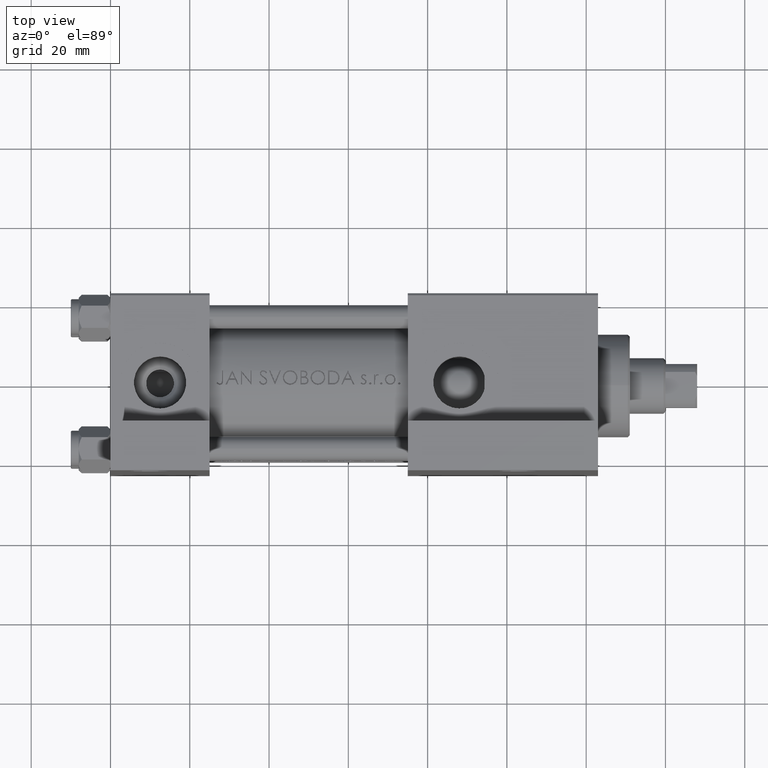
[diagram: clean part render]
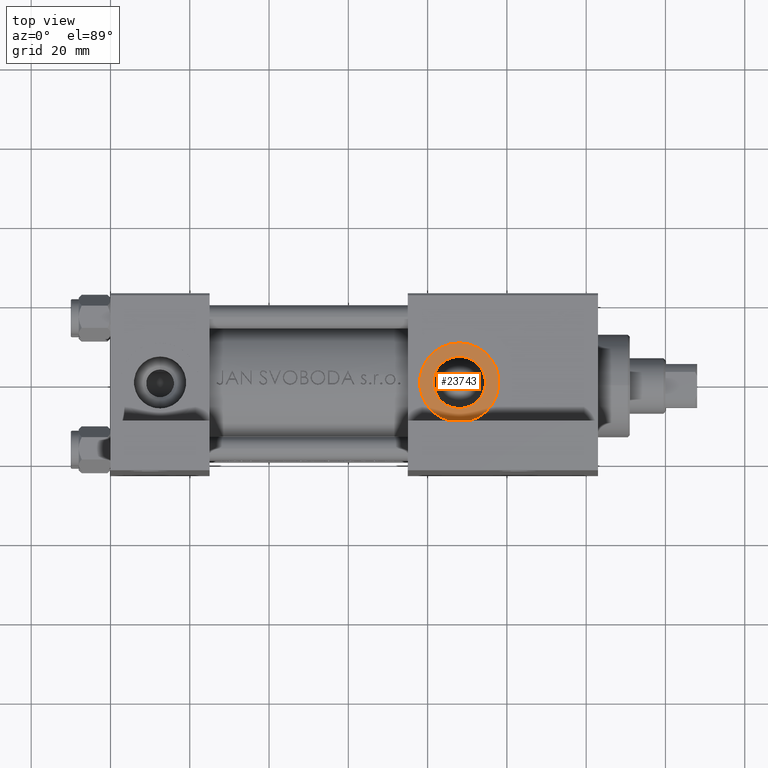
[diagram: same view with one face highlighted and labeled with its STEP entity id]
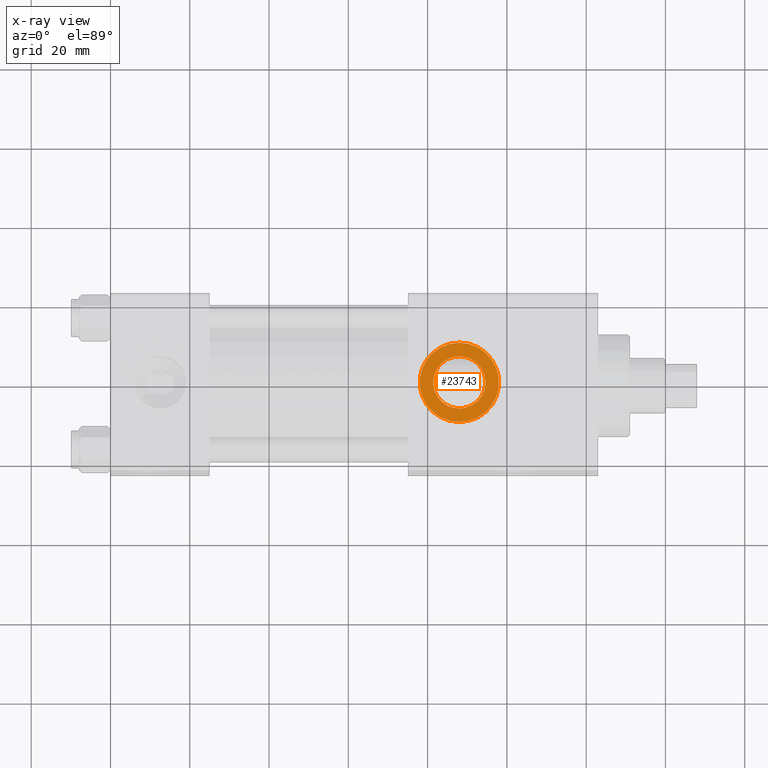
[diagram: x-ray of the same camera — body ghosted, the highlighted face saturated]
A machine part, top view. The second image highlights one B-rep face of the part: STEP entity #23743.
The next image is the same camera in x-ray: the body ghosted, the highlighted face saturated — about 0% of this face is hidden behind the body in this view.
In plain terms, the highlighted planar face has unit normal (0, -0, 1).
Its self-contained STEP definition (entity closure, byte-faithful):
#511 = CARTESIAN_POINT ( 'NONE',  ( 88.00000000000001421, -22.29999999999999716, 9.999999999999994671 ) ) ;
#962 = AXIS2_PLACEMENT_3D ( 'NONE', #40811, #7837, #10735 ) ;
#973 = CARTESIAN_POINT ( 'NONE',  ( 88.00000000000001421, -22.29999999999999716, 1.734723475976807403E-17 ) ) ;
#4597 = FACE_BOUND ( 'NONE', #18524, .T. ) ;
#7837 = DIRECTION ( 'NONE',  ( 0.000000000000000000, -1.000000000000000000, -8.673617379884036705E-17 ) ) ;
#7973 = DIRECTION ( 'NONE',  ( 0.000000000000000000, 0.000000000000000000, -1.000000000000000000 ) ) ;
#10735 = DIRECTION ( 'NONE',  ( 0.000000000000000000, 0.000000000000000000, -1.000000000000000000 ) ) ;
#10751 = ORIENTED_EDGE ( 'NONE', *, *, #26469, .F. ) ;
#11105 = DIRECTION ( 'NONE',  ( 0.000000000000000000, -1.000000000000000000, -8.673617379884036705E-17 ) ) ;
#11600 = VERTEX_POINT ( 'NONE', #13150 ) ;
#11719 = CIRCLE ( 'NONE', #962, 9.999999999999994671 ) ;
#12260 = CIRCLE ( 'NONE', #37608, 6.580000000000002736 ) ;
#13150 = CARTESIAN_POINT ( 'NONE',  ( 88.00000000000001421, -22.29999999999999716, -9.999999999999994671 ) ) ;
#13796 = DIRECTION ( 'NONE',  ( 0.000000000000000000, 0.000000000000000000, -1.000000000000000000 ) ) ;
#14183 = CIRCLE ( 'NONE', #46474, 6.580000000000002736 ) ;
#15694 = CARTESIAN_POINT ( 'NONE',  ( 88.00000000000001421, -22.29999999999999716, 1.734723475976808635E-17 ) ) ;
#16513 = ORIENTED_EDGE ( 'NONE', *, *, #43471, .F. ) ;
#17629 = AXIS2_PLACEMENT_3D ( 'NONE', #973, #18564, #25783 ) ;
#18367 = CARTESIAN_POINT ( 'NONE',  ( 88.00000000000001421, -22.29999999999999716, 1.734723475976807403E-17 ) ) ;
#18524 = EDGE_LOOP ( 'NONE', ( #16513, #10751 ) ) ;
#18564 = DIRECTION ( 'NONE',  ( 0.000000000000000000, -1.000000000000000000, -8.673617379884036705E-17 ) ) ;
#19002 = ORIENTED_EDGE ( 'NONE', *, *, #37922, .T. ) ;
#19705 = ORIENTED_EDGE ( 'NONE', *, *, #38778, .T. ) ;
#22659 = PLANE ( 'NONE',  #17629 ) ;
#23743 = ADVANCED_FACE ( 'NONE', ( #4597, #33941 ), #22659, .T. ) ;
#24422 = VERTEX_POINT ( 'NONE', #27532 ) ;
#24460 = VERTEX_POINT ( 'NONE', #511 ) ;
#25390 = DIRECTION ( 'NONE',  ( 0.000000000000000000, 0.000000000000000000, -1.000000000000000000 ) ) ;
#25783 = DIRECTION ( 'NONE',  ( 0.000000000000000000, 8.673617379884036705E-17, -1.000000000000000000 ) ) ;
#26469 = EDGE_CURVE ( 'NONE', #24422, #44867, #12260, .T. ) ;
#27532 = CARTESIAN_POINT ( 'NONE',  ( 88.00000000000001421, -22.29999999999999716, 6.580000000000002736 ) ) ;
#30344 = CARTESIAN_POINT ( 'NONE',  ( 88.00000000000001421, -22.29999999999999716, 1.734723475976808635E-17 ) ) ;
#33207 = CARTESIAN_POINT ( 'NONE',  ( 88.00000000000001421, -22.29999999999999716, -6.580000000000002736 ) ) ;
#33244 = AXIS2_PLACEMENT_3D ( 'NONE', #18367, #39548, #13796 ) ;
#33941 = FACE_OUTER_BOUND ( 'NONE', #41614, .T. ) ;
#34810 = CIRCLE ( 'NONE', #33244, 9.999999999999994671 ) ;
#37608 = AXIS2_PLACEMENT_3D ( 'NONE', #15694, #47262, #25390 ) ;
#37922 = EDGE_CURVE ( 'NONE', #24460, #11600, #11719, .T. ) ;
#38778 = EDGE_CURVE ( 'NONE', #11600, #24460, #34810, .T. ) ;
#39548 = DIRECTION ( 'NONE',  ( 0.000000000000000000, -1.000000000000000000, -8.673617379884036705E-17 ) ) ;
#40811 = CARTESIAN_POINT ( 'NONE',  ( 88.00000000000001421, -22.29999999999999716, 1.734723475976807403E-17 ) ) ;
#41614 = EDGE_LOOP ( 'NONE', ( #19705, #19002 ) ) ;
#43471 = EDGE_CURVE ( 'NONE', #44867, #24422, #14183, .T. ) ;
#44867 = VERTEX_POINT ( 'NONE', #33207 ) ;
#46474 = AXIS2_PLACEMENT_3D ( 'NONE', #30344, #11105, #7973 ) ;
#47262 = DIRECTION ( 'NONE',  ( 0.000000000000000000, -1.000000000000000000, -8.673617379884036705E-17 ) ) ;